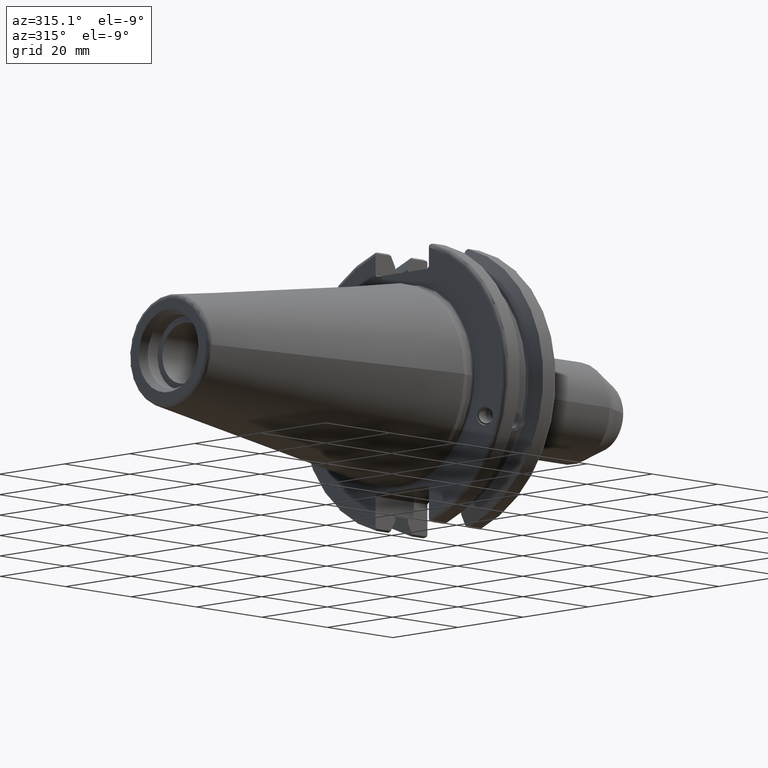
[diagram: clean part render]
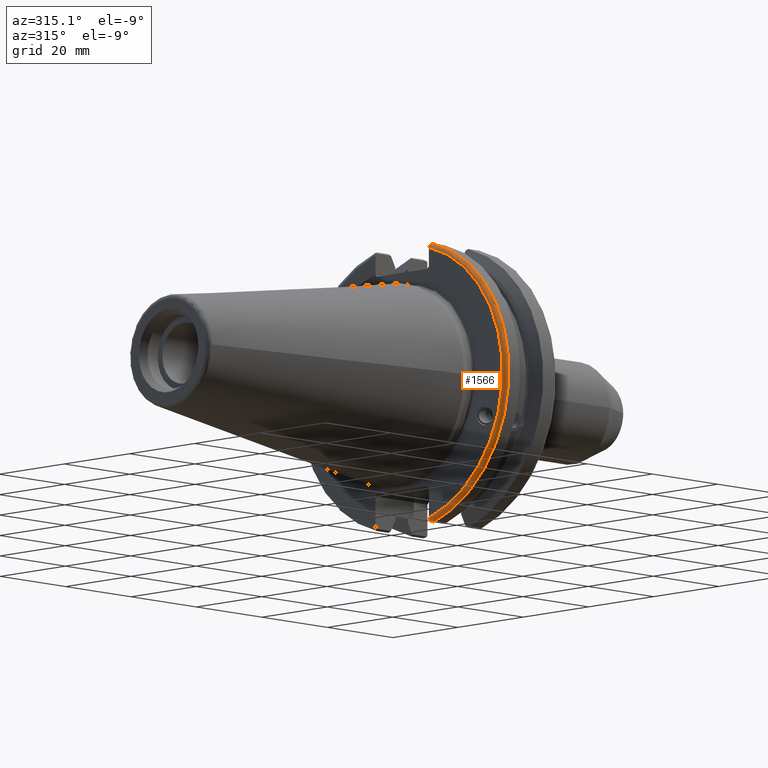
[diagram: same view with one face highlighted and labeled with its STEP entity id]
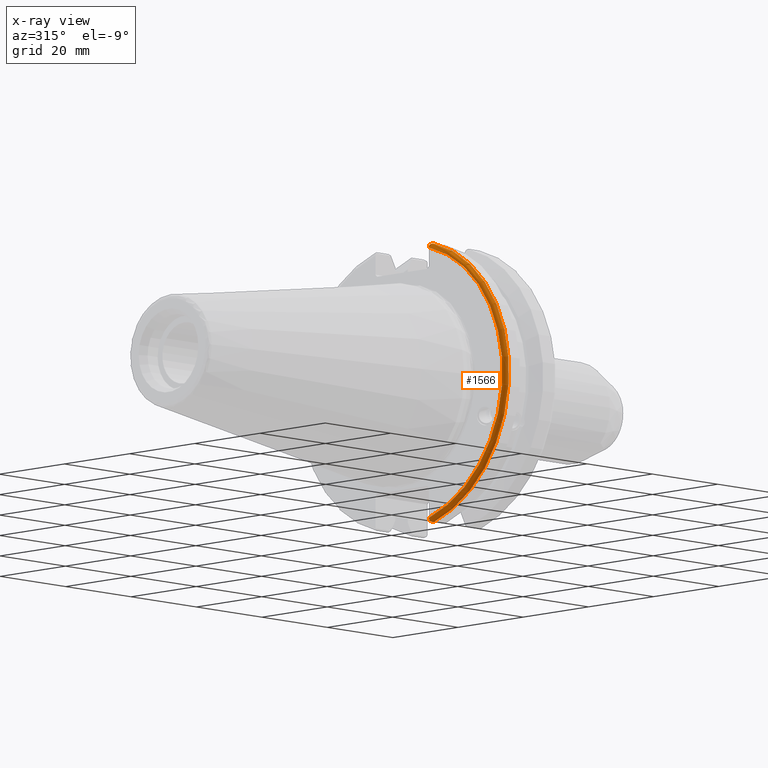
[diagram: x-ray of the same camera — body ghosted, the highlighted face saturated]
A machine part, auxiliary view. The second image highlights one B-rep face of the part: STEP entity #1566.
The next image is the same camera in x-ray: the body ghosted, the highlighted face saturated — about 0% of this face is hidden behind the body in this view.
In plain terms, the highlighted toroidal blend (fillet) surface has major radius 30.75 mm and minor (blend) radius 1 mm.
Its self-contained STEP definition (entity closure, byte-faithful):
#90=B_SPLINE_CURVE_WITH_KNOTS('',3,(#2949,#2950,#2951,#2952,#2953,#2954),
 .UNSPECIFIED.,.F.,.F.,(4,2,4),(0.0977210450333167,0.111963554372601,0.150804064902975),
 .UNSPECIFIED.);
#91=B_SPLINE_CURVE_WITH_KNOTS('',3,(#2975,#2976,#2977,#2978,#2979,#2980),
 .UNSPECIFIED.,.F.,.F.,(4,2,4),(0.452741154494498,0.491581665024872,0.505824174364157),
 .UNSPECIFIED.);
#92=B_SPLINE_CURVE_WITH_KNOTS('',3,(#2984,#2985,#2986,#2987,#2988,#2989,
#2990,#2991),.UNSPECIFIED.,.F.,.F.,(4,2,2,4),(-0.104180282751877,-0.0729784742461442,
-0.0343524753874977,0.),.UNSPECIFIED.);
#93=B_SPLINE_CURVE_WITH_KNOTS('',3,(#2994,#2995,#2996,#2997,#2998,#2999,
#3000,#3001),.UNSPECIFIED.,.F.,.F.,(4,2,2,4),(0.,0.0343524753874981,0.0729784742461436,
0.104180282751876),.UNSPECIFIED.);
#414=FACE_OUTER_BOUND('',#514,.T.);
#514=EDGE_LOOP('',(#1339,#1340,#1341,#1342,#1343,#1344));
#606=CIRCLE('',#1739,30.75);
#611=CIRCLE('',#1752,31.75);
#736=VERTEX_POINT('',#2829);
#737=VERTEX_POINT('',#2830);
#760=VERTEX_POINT('',#2948);
#766=VERTEX_POINT('',#2973);
#767=VERTEX_POINT('',#2983);
#768=VERTEX_POINT('',#2992);
#932=EDGE_CURVE('',#736,#737,#606,.T.);
#964=EDGE_CURVE('',#760,#736,#90,.T.);
#974=EDGE_CURVE('',#737,#766,#91,.T.);
#976=EDGE_CURVE('',#766,#767,#92,.T.);
#977=EDGE_CURVE('',#767,#768,#611,.T.);
#978=EDGE_CURVE('',#768,#760,#93,.T.);
#1339=ORIENTED_EDGE('',*,*,#976,.T.);
#1340=ORIENTED_EDGE('',*,*,#977,.T.);
#1341=ORIENTED_EDGE('',*,*,#978,.T.);
#1342=ORIENTED_EDGE('',*,*,#964,.T.);
#1343=ORIENTED_EDGE('',*,*,#932,.T.);
#1344=ORIENTED_EDGE('',*,*,#974,.T.);
#1513=TOROIDAL_SURFACE('',#1751,30.75,1.);
#1566=ADVANCED_FACE('',(#414),#1513,.T.);
#1739=AXIS2_PLACEMENT_3D('',#2831,#2083,#2084);
#1751=AXIS2_PLACEMENT_3D('',#2982,#2131,#2132);
#1752=AXIS2_PLACEMENT_3D('',#2993,#2133,#2134);
#2083=DIRECTION('center_axis',(1.,0.,0.));
#2084=DIRECTION('ref_axis',(0.,-1.,1.60812264967664E-16));
#2131=DIRECTION('center_axis',(1.,0.,0.));
#2132=DIRECTION('ref_axis',(0.,0.,-1.));
#2133=DIRECTION('center_axis',(-1.,0.,0.));
#2134=DIRECTION('ref_axis',(0.,-1.,1.60812264967664E-16));
#2829=CARTESIAN_POINT('',(3.175,-8.18999999999999,29.6392712461019));
#2830=CARTESIAN_POINT('',(3.175,-8.19,-29.6392712461019));
#2831=CARTESIAN_POINT('Origin',(3.175,0.,0.));
#2948=CARTESIAN_POINT('',(3.31912772509028,-8.19,30.1755016258903));
#2949=CARTESIAN_POINT('Ctrl Pts',(3.31912772509028,-8.19,30.1755016258903));
#2950=CARTESIAN_POINT('Ctrl Pts',(3.29318362718666,-8.19,30.131014531546));
#2951=CARTESIAN_POINT('Ctrl Pts',(3.27103565282437,-8.19,30.0852355256475));
#2952=CARTESIAN_POINT('Ctrl Pts',(3.20451443291695,-8.19,29.9212724384851));
#2953=CARTESIAN_POINT('Ctrl Pts',(3.175,-8.19,29.7687396145364));
#2954=CARTESIAN_POINT('Ctrl Pts',(3.175,-8.19,29.6392712461019));
#2973=CARTESIAN_POINT('',(3.31912772509028,-8.19,-30.1755016258903));
#2975=CARTESIAN_POINT('Ctrl Pts',(3.175,-8.19,-29.6392712461018));
#2976=CARTESIAN_POINT('Ctrl Pts',(3.175,-8.19,-29.7687396145364));
#2977=CARTESIAN_POINT('Ctrl Pts',(3.20451443291695,-8.19,-29.9212724384851));
#2978=CARTESIAN_POINT('Ctrl Pts',(3.27103565282437,-8.19,-30.0852355256475));
#2979=CARTESIAN_POINT('Ctrl Pts',(3.29318362718666,-8.19,-30.131014531546));
#2980=CARTESIAN_POINT('Ctrl Pts',(3.31912772509028,-8.19,-30.1755016258903));
#2982=CARTESIAN_POINT('Origin',(4.175,0.,0.));
#2983=CARTESIAN_POINT('',(4.175,-8.67204822802685,-30.5427254764662));
#2984=CARTESIAN_POINT('Ctrl Pts',(3.31912772509028,-8.19,-30.1755016258903));
#2985=CARTESIAN_POINT('Ctrl Pts',(3.36755369570113,-8.27036828330781,-30.2367261024977));
#2986=CARTESIAN_POINT('Ctrl Pts',(3.43232973376814,-8.34909446036477,-30.2966996242308));
#2987=CARTESIAN_POINT('Ctrl Pts',(3.58532758094931,-8.48862804755884,-30.4029961692546));
#2988=CARTESIAN_POINT('Ctrl Pts',(3.70655857052286,-8.56482138642532,-30.4610401774263));
#2989=CARTESIAN_POINT('Ctrl Pts',(3.92668295662254,-8.6471881193939,-30.5237870709558));
#2990=CARTESIAN_POINT('Ctrl Pts',(4.06049174870834,-8.67204822802686,-30.5427254764662));
#2991=CARTESIAN_POINT('Ctrl Pts',(4.175,-8.67204822802686,-30.5427254764662));
#2992=CARTESIAN_POINT('',(4.175,-8.67204822802685,30.5427254764662));
#2993=CARTESIAN_POINT('Origin',(4.175,0.,0.));
#2994=CARTESIAN_POINT('Ctrl Pts',(4.175,-8.67204822802686,30.5427254764662));
#2995=CARTESIAN_POINT('Ctrl Pts',(4.06049174870834,-8.67204822802686,30.5427254764662));
#2996=CARTESIAN_POINT('Ctrl Pts',(3.92668295662254,-8.64718811939389,30.5237870709558));
#2997=CARTESIAN_POINT('Ctrl Pts',(3.70655857052286,-8.56482138642532,30.4610401774263));
#2998=CARTESIAN_POINT('Ctrl Pts',(3.58532758094931,-8.48862804755884,30.4029961692546));
#2999=CARTESIAN_POINT('Ctrl Pts',(3.43232973376814,-8.34909446036478,30.2966996242308));
#3000=CARTESIAN_POINT('Ctrl Pts',(3.36755369570113,-8.2703682833078,30.2367261024977));
#3001=CARTESIAN_POINT('Ctrl Pts',(3.31912772509028,-8.19,30.1755016258903));